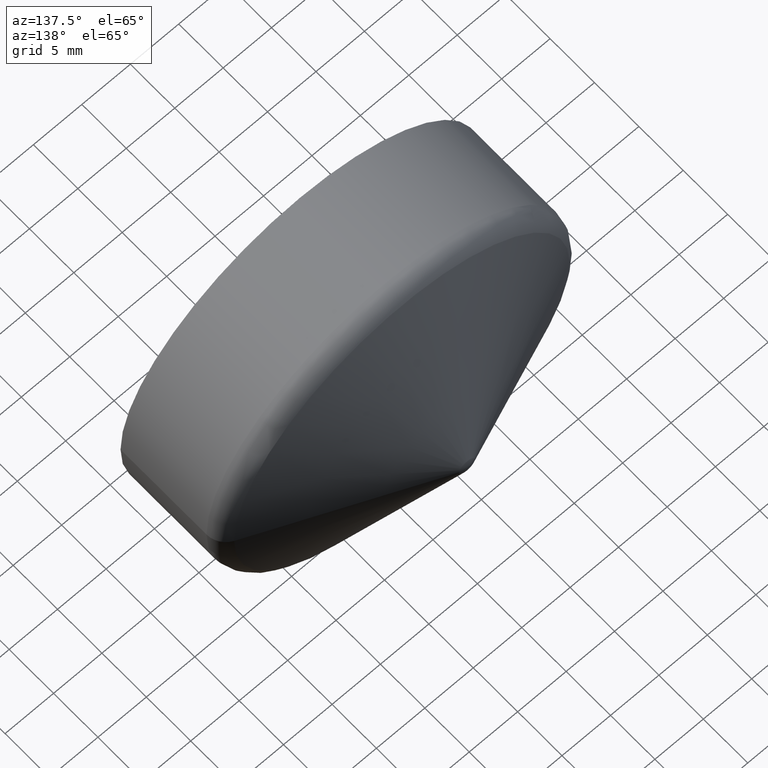
[diagram: clean part render]
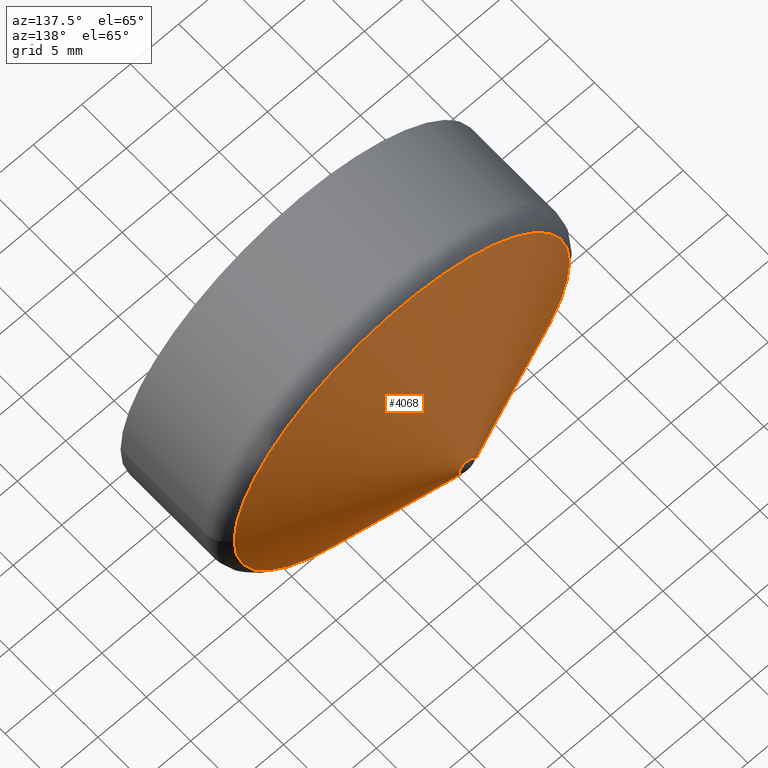
[diagram: same view with one face highlighted and labeled with its STEP entity id]
A machine part, auxiliary view. The second image highlights one B-rep face of the part: STEP entity #4068.
In plain terms, the highlighted conical surface has half-angle 66.053 deg.
Its self-contained STEP definition (entity closure, byte-faithful):
#124 = EDGE_LOOP ( 'NONE', ( #1324 ) ) ;
#332 = AXIS2_PLACEMENT_3D ( 'NONE', #391, #1758, #7490 ) ;
#391 = CARTESIAN_POINT ( 'NONE',  ( 1.530808498934194000E-016, 11.49999999999999800, 0.0000000000000000000 ) ) ;
#1324 = ORIENTED_EDGE ( 'NONE', *, *, #9051, .T. ) ;
#1602 = DIRECTION ( 'NONE',  ( 1.000000000000000000, 0.0000000000000000000, 0.0000000000000000000 ) ) ;
#1758 = DIRECTION ( 'NONE',  ( 2.041077998578925000E-017, -1.000000000000000000, -0.0000000000000000000 ) ) ;
#2127 = AXIS2_PLACEMENT_3D ( 'NONE', #7300, #7904, #8606 ) ;
#2721 = CIRCLE ( 'NONE', #8901, 0.8117695237952031700 ) ;
#2839 = CARTESIAN_POINT ( 'NONE',  ( 17.31176952379519900, 11.49999999999999800, 0.0000000000000000000 ) ) ;
#2937 = VERTEX_POINT ( 'NONE', #2839 ) ;
#4068 = ADVANCED_FACE ( 'NONE', ( #4230, #5662 ), #7310, .T. ) ;
#4230 = FACE_BOUND ( 'NONE', #124, .T. ) ;
#4547 = DIRECTION ( 'NONE',  ( 2.041077998578925000E-017, -1.000000000000000000, -0.0000000000000000000 ) ) ;
#4689 = ORIENTED_EDGE ( 'NONE', *, *, #9106, .F. ) ;
#4915 = VERTEX_POINT ( 'NONE', #6343 ) ;
#5662 = FACE_OUTER_BOUND ( 'NONE', #8621, .T. ) ;
#6343 = CARTESIAN_POINT ( 'NONE',  ( 0.8117695237952031700, 18.82784852770609200, 0.0000000000000000000 ) ) ;
#7300 = CARTESIAN_POINT ( 'NONE',  ( 1.530808498934194000E-016, 11.49999999999999800, 0.0000000000000000000 ) ) ;
#7310 = CONICAL_SURFACE ( 'NONE', #2127, 17.31176952379519900, 1.152849612998524600 ) ;
#7490 = DIRECTION ( 'NONE',  ( 1.000000000000000000, 0.0000000000000000000, 0.0000000000000000000 ) ) ;
#7904 = DIRECTION ( 'NONE',  ( 2.041077998578925000E-017, -1.000000000000000000, -0.0000000000000000000 ) ) ;
#8376 = CIRCLE ( 'NONE', #332, 17.31176952379519900 ) ;
#8606 = DIRECTION ( 'NONE',  ( 1.000000000000000000, 0.0000000000000000000, 0.0000000000000000000 ) ) ;
#8621 = EDGE_LOOP ( 'NONE', ( #4689 ) ) ;
#8797 = CARTESIAN_POINT ( 'NONE',  ( 3.513745825220641000E-018, 18.82784852770609200, 0.0000000000000000000 ) ) ;
#8901 = AXIS2_PLACEMENT_3D ( 'NONE', #8797, #4547, #1602 ) ;
#9051 = EDGE_CURVE ( 'NONE', #4915, #4915, #2721, .T. ) ;
#9106 = EDGE_CURVE ( 'NONE', #2937, #2937, #8376, .T. ) ;